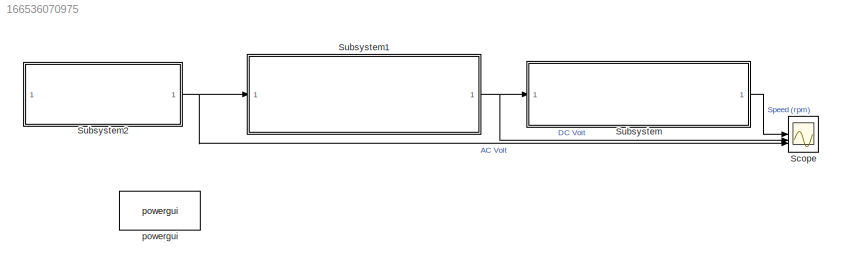
MODEL slx_166536070975
KIND model
CONFIG AbsTol = auto
CONFIG EnableMultiTasking = off
CONFIG FixedStep = auto
CONFIG MaxStep = 0.0001
CONFIG MinStep = auto
CONFIG RelTol = 1e-3
CONFIG SampleTimeConstraint = Unconstrained
CONFIG SolverName = VariableStepAuto
CONFIG StartTime = 0.0
CONFIG StopTime = 0.8
BLOCK [Scope] Scope
  Floating = off
  NumInputPorts = 3
  ScopeSpecificationString = Simulink.scopes.TimeScopeBlockCfg('CurrentConfiguration', extmgr.ConfigurationSet(extmgr.Configuration('Core','General UI',true,'FigureColor',[1 1 1]),extmgr.Configuration('Core','Source UI',true),extmgr.Configuration('Sources','WiredSimulink',true),extmgr.Configuration('Visuals','Time Domain',true,'SerializedDisplays',{struct('MinYLimReal','-138.83369','MaxYLimReal','967.12657','YLabelReal','','M...<+3179ch>
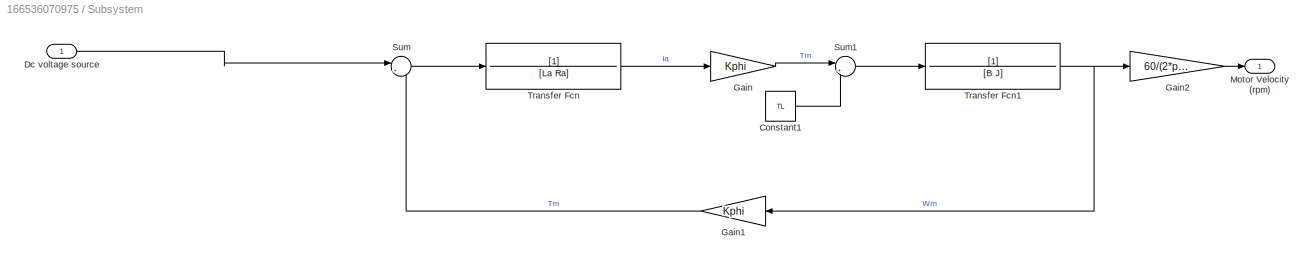
BLOCK [SubSystem] Subsystem
BLOCK [Constant] Subsystem/Constant1
  Value = TL
BLOCK [Inport] Subsystem/Dc voltage source
BLOCK [Gain] Subsystem/Gain
  Gain = Kphi
BLOCK [Gain] Subsystem/Gain1
  Gain = Kphi
BLOCK [Gain] Subsystem/Gain2
  Gain = 60/(2*pi)
BLOCK [Outport] Subsystem/Motor Velocity (rpm)
BLOCK [Sum] Subsystem/Sum
  Inputs = |+-
BLOCK [Sum] Subsystem/Sum1
  Inputs = |+-
BLOCK [TransferFcn] Subsystem/Transfer Fcn
  Denominator = [La Ra]
BLOCK [TransferFcn] Subsystem/Transfer Fcn1
  Denominator = [B J]
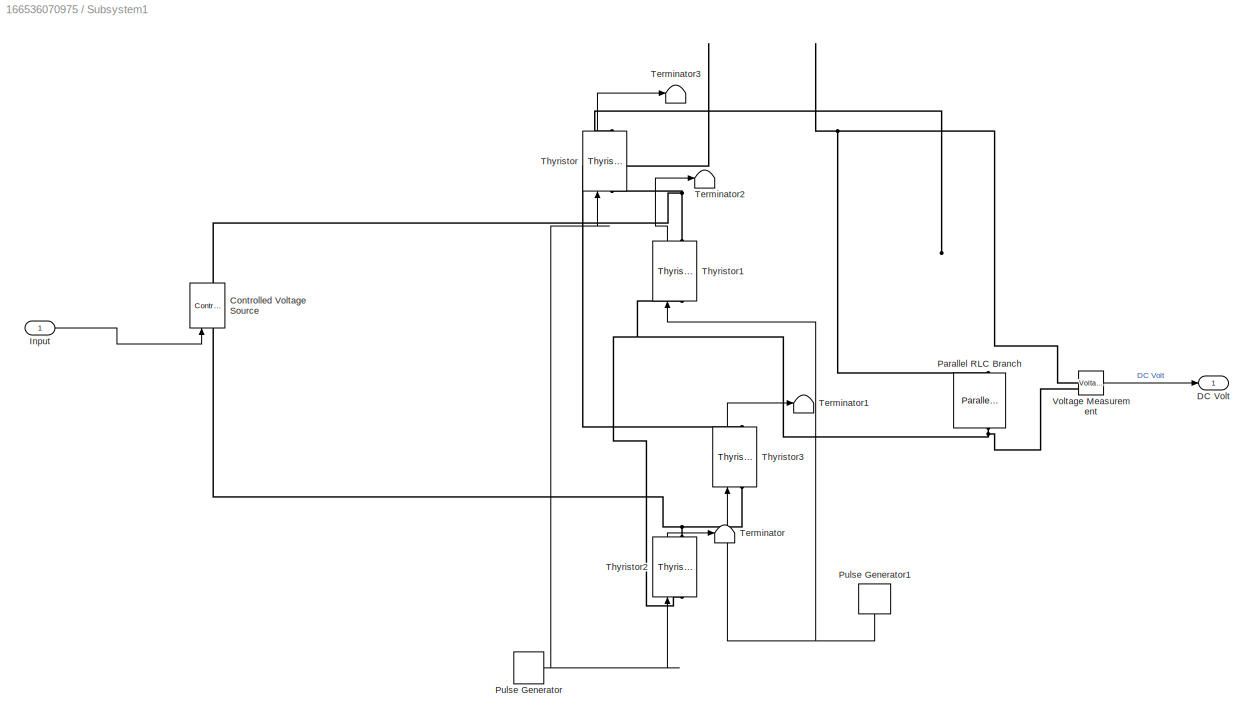
BLOCK [SubSystem] Subsystem1
BLOCK [Reference] Subsystem1/Controlled Voltage Source  REF=spsControlledVoltageSourceLib/Controlled Voltage Source
  LibrarySourceBlock = sps_lib/Sources/Controlled Voltage Source
  SourceBlock = spsControlledVoltageSourceLib/Controlled Voltage Source
  SourceType = Controlled Voltage Source
BLOCK [Outport] Subsystem1/DC Volt
BLOCK [Inport] Subsystem1/Input
BLOCK [Reference] Subsystem1/Parallel RLC Branch  REF=spsParallelRLCBranchLib/Parallel RLC Branch
  AttributesFormatString = \n
  LibrarySourceBlock = sps_lib/Passives/Parallel RLC Branch
  NameLocation = left
  SourceBlock = spsParallelRLCBranchLib/Parallel RLC Branch
  SourceType = Parallel RLC Branch
BLOCK [DiscretePulseGenerator] Subsystem1/Pulse Generator
  Period = 0.02
  PhaseDelay = (0/360)*0.02
  PulseType = Time based
  PulseWidth = 5
BLOCK [DiscretePulseGenerator] Subsystem1/Pulse Generator1
  NameLocation = left
  Period = 0.02
  PhaseDelay = (180/360)*0.02
  PulseType = Time based
  PulseWidth = 5
BLOCK [Terminator] Subsystem1/Terminator
BLOCK [Terminator] Subsystem1/Terminator1
BLOCK [Terminator] Subsystem1/Terminator2
BLOCK [Terminator] Subsystem1/Terminator3
BLOCK [Reference] Subsystem1/Thyristor  REF=spsThyristorLib/Thyristor
  LibrarySourceBlock = sps_lib/Power Electronics/Thyristor
  NameLocation = right
  SourceBlock = spsThyristorLib/Thyristor
  SourceType = Thyristor
BLOCK [Reference] Subsystem1/Thyristor1  REF=spsThyristorLib/Thyristor
  LibrarySourceBlock = sps_lib/Power Electronics/Thyristor
  NameLocation = right
  SourceBlock = spsThyristorLib/Thyristor
  SourceType = Thyristor
BLOCK [Reference] Subsystem1/Thyristor2  REF=spsThyristorLib/Thyristor
  LibrarySourceBlock = sps_lib/Power Electronics/Thyristor
  NameLocation = right
  SourceBlock = spsThyristorLib/Thyristor
  SourceType = Thyristor
BLOCK [Reference] Subsystem1/Thyristor3  REF=spsThyristorLib/Thyristor
  LibrarySourceBlock = sps_lib/Power Electronics/Thyristor
  NameLocation = right
  SourceBlock = spsThyristorLib/Thyristor
  SourceType = Thyristor
BLOCK [Reference] Subsystem1/Voltage Measurement  REF=spsVoltageMeasurementLib/Voltage Measurement
  LibrarySourceBlock = sps_lib/Sensors and Measurements/Voltage Measurement
  SourceBlock = spsVoltageMeasurementLib/Voltage Measurement
  SourceType = Voltage Measurement
  UserDataPersistent = on
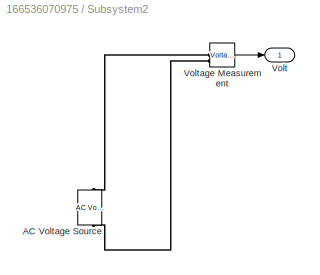
BLOCK [SubSystem] Subsystem2
  NameLocation = left
BLOCK [Reference] Subsystem2/AC Voltage Source  REF=spsACVoltageSourceLib/AC Voltage Source
  LibrarySourceBlock = sps_lib/Sources/AC Voltage Source
  SourceBlock = spsACVoltageSourceLib/AC Voltage Source
  SourceType = AC Voltage Source
BLOCK [Outport] Subsystem2/Volt
BLOCK [Reference] Subsystem2/Voltage Measurement  REF=spsVoltageMeasurementLib/Voltage Measurement
  LibrarySourceBlock = sps_lib/Sensors and Measurements/Voltage Measurement
  SourceBlock = spsVoltageMeasurementLib/Voltage Measurement
  SourceType = Voltage Measurement
  UserDataPersistent = on
BLOCK [Reference] powergui  REF=sps_lib/powergui
  Priority = 1
  SourceBlock = sps_lib/powergui
  SourceType = PSB option menu block
LINE Subsystem/Constant1:1 -> Subsystem/Sum1:2
LINE Subsystem/Dc voltage source:1 -> Subsystem/Sum:1
LINE Subsystem/Gain1:1 -> Subsystem/Sum:2
LINE Subsystem/Gain2:1 -> Subsystem/Motor Velocity (rpm):1
LINE Subsystem/Gain:1 -> Subsystem/Sum1:1
LINE Subsystem/Sum1:1 -> Subsystem/Transfer Fcn1:1
LINE Subsystem/Sum:1 -> Subsystem/Transfer Fcn:1
NET Subsystem/Transfer Fcn1:1 -> Subsystem/Gain1:1, Subsystem/Gain2:1
LINE Subsystem/Transfer Fcn:1 -> Subsystem/Gain:1
LINE Subsystem1/Input:1 -> Subsystem1/Controlled Voltage Source:1
NET Subsystem1/Pulse Generator1:1 -> Subsystem1/Thyristor1:1, Subsystem1/Thyristor3:1
NET Subsystem1/Pulse Generator:1 -> Subsystem1/Thyristor2:1, Subsystem1/Thyristor:1
LINE Subsystem1/Thyristor1:1 -> Subsystem1/Terminator2:1
LINE Subsystem1/Thyristor2:1 -> Subsystem1/Terminator:1
LINE Subsystem1/Thyristor3:1 -> Subsystem1/Terminator1:1
LINE Subsystem1/Thyristor:1 -> Subsystem1/Terminator3:1
LINE Subsystem1/Voltage Measurement:1 -> Subsystem1/DC Volt:1
NET Subsystem1:1 -> Scope:2, Subsystem:1
LINE Subsystem2/Voltage Measurement:1 -> Subsystem2/Volt:1
NET Subsystem2:1 -> Scope:3, Subsystem1:1
LINE Subsystem:1 -> Scope:1
PNET net1: Subsystem1/Controlled Voltage Source:LConn1 -- Subsystem1/Thyristor2:RConn1 -- Subsystem1/Thyristor3:LConn1
PNET net2: Subsystem1/Controlled Voltage Source:RConn1 -- Subsystem1/Thyristor1:RConn1 -- Subsystem1/Thyristor:LConn1
PNET net3: Subsystem1/Parallel RLC Branch:LConn1 -- Subsystem1/Thyristor3:RConn1 -- Subsystem1/Thyristor:RConn1 -- Subsystem1/Voltage Measurement:LConn1
PNET net4: Subsystem1/Parallel RLC Branch:RConn1 -- Subsystem1/Thyristor1:LConn1 -- Subsystem1/Thyristor2:LConn1 -- Subsystem1/Voltage Measurement:LConn2
PLINE Subsystem2/AC Voltage Source:LConn1 -- Subsystem2/Voltage Measurement:LConn2
PLINE Subsystem2/AC Voltage Source:RConn1 -- Subsystem2/Voltage Measurement:LConn1
note: NET lines group one-source signal fan-out (src -> all destinations, sorted); 1:1 wires keep LINE; PNET lines group multi-terminal physical nets as a canonical sorted terminal list (undirected conserving connections); 2-terminal nets keep the pairwise PLINE form
